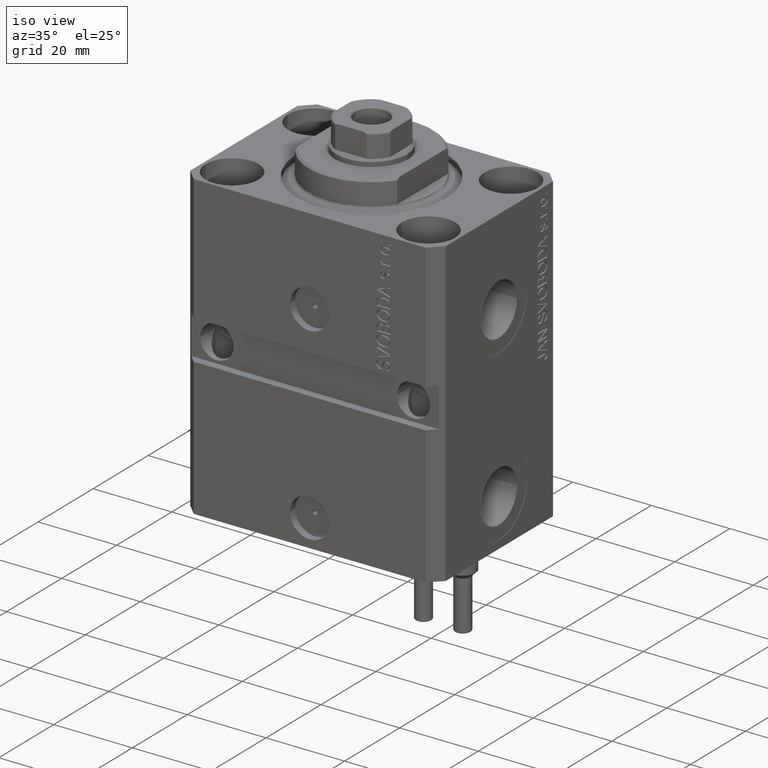
[diagram: clean part render]
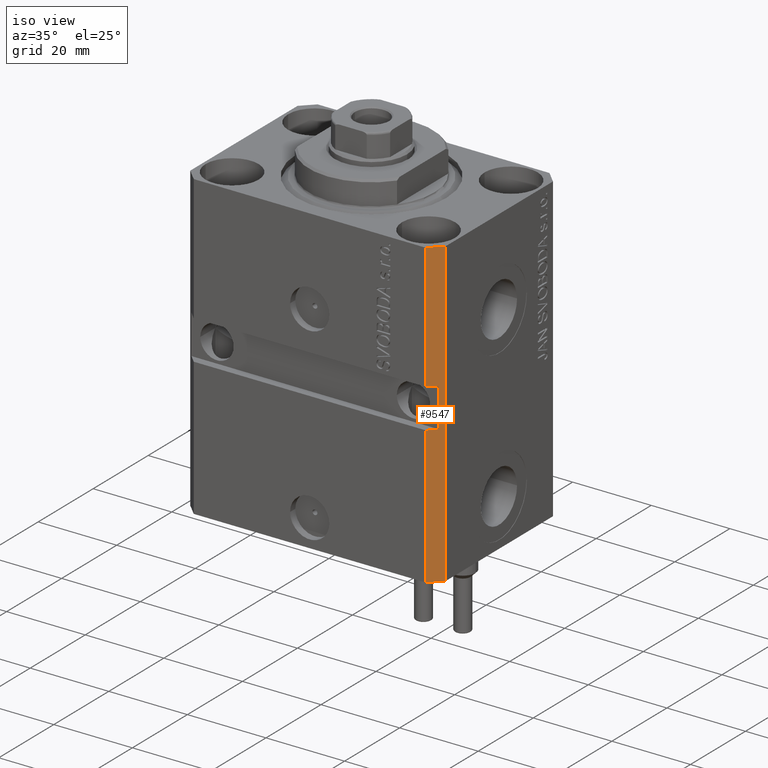
[diagram: same view with one face highlighted and labeled with its STEP entity id]
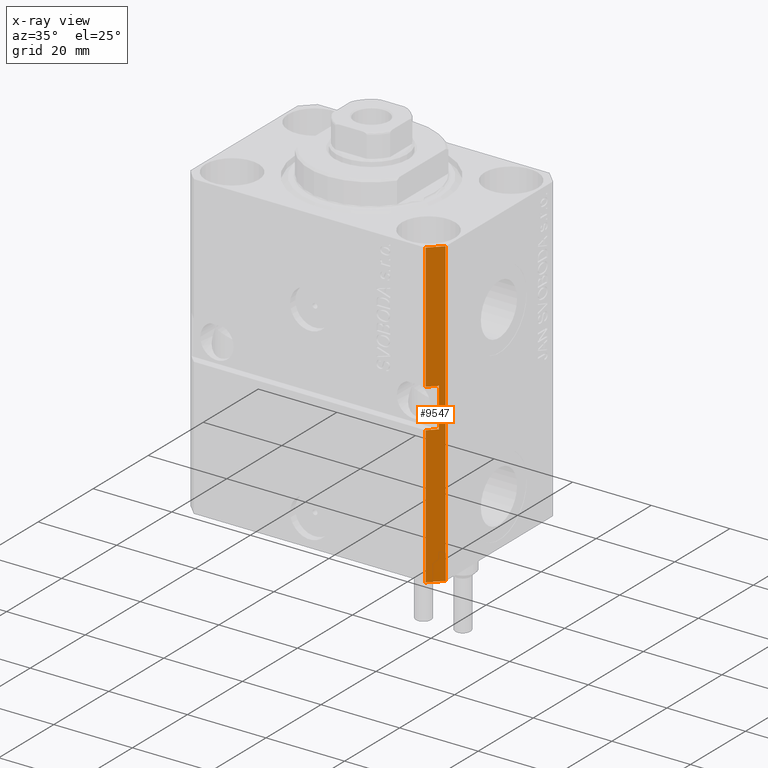
[diagram: x-ray of the same camera — body ghosted, the highlighted face saturated]
A machine part, iso view. The second image highlights one B-rep face of the part: STEP entity #9547.
The next image is the same camera in x-ray: the body ghosted, the highlighted face saturated — about 0% of this face is hidden behind the body in this view.
In plain terms, the highlighted planar face has unit normal (0.7071, -0.7071, 0).
Its self-contained STEP definition (entity closure, byte-faithful):
#1344 = CARTESIAN_POINT ( 'NONE',  ( 31.49999999999651124, -20.49999999999949551, -77.00000000000000000 ) ) ;
#1518 = VERTEX_POINT ( 'NONE', #18803 ) ;
#1938 = VERTEX_POINT ( 'NONE', #47677 ) ;
#2707 = VECTOR ( 'NONE', #20013, 1000.000000000000000 ) ;
#3763 = LINE ( 'NONE', #25850, #41062 ) ;
#4176 = VERTEX_POINT ( 'NONE', #46968 ) ;
#5190 = EDGE_CURVE ( 'NONE', #4176, #39904, #30028, .T. ) ;
#5207 = DIRECTION ( 'NONE',  ( 0.000000000000000000, 0.000000000000000000, 1.000000000000000000 ) ) ;
#5441 = ORIENTED_EDGE ( 'NONE', *, *, #36109, .T. ) ;
#5447 = CARTESIAN_POINT ( 'NONE',  ( 29.49999999999650413, -22.49999999999949196, -77.00000000000000000 ) ) ;
#6826 = EDGE_CURVE ( 'NONE', #7183, #22513, #9450, .T. ) ;
#7183 = VERTEX_POINT ( 'NONE', #13967 ) ;
#7200 = DIRECTION ( 'NONE',  ( 0.7071067811865483499, 0.7071067811865466846, 0.000000000000000000 ) ) ;
#7521 = AXIS2_PLACEMENT_3D ( 'NONE', #29481, #10576, #33153 ) ;
#7701 = CARTESIAN_POINT ( 'NONE',  ( 29.49999999999650058, -22.49999999999949551, -41.99999999999998579 ) ) ;
#7724 = VECTOR ( 'NONE', #5207, 1000.000000000000000 ) ;
#9450 = LINE ( 'NONE', #42594, #2707 ) ;
#9547 = ADVANCED_FACE ( 'NONE', ( #44196 ), #43473, .T. ) ;
#9661 = VECTOR ( 'NONE', #26817, 1000.000000000000000 ) ;
#9751 = VECTOR ( 'NONE', #29148, 1000.000000000000000 ) ;
#9826 = VERTEX_POINT ( 'NONE', #11734 ) ;
#10514 = VECTOR ( 'NONE', #22665, 1000.000000000000000 ) ;
#10542 = EDGE_CURVE ( 'NONE', #1518, #1938, #14747, .T. ) ;
#10576 = DIRECTION ( 'NONE',  ( 0.7071067811865466846, -0.7071067811865483499, 0.000000000000000000 ) ) ;
#11548 = ORIENTED_EDGE ( 'NONE', *, *, #5190, .F. ) ;
#11734 = CARTESIAN_POINT ( 'NONE',  ( 29.49999999999650413, -22.49999999999949196, -77.00000000000000000 ) ) ;
#12953 = ORIENTED_EDGE ( 'NONE', *, *, #14999, .F. ) ;
#13967 = CARTESIAN_POINT ( 'NONE',  ( 31.49999999999651124, -20.49999999999949196, -32.00000000000000711 ) ) ;
#14747 = LINE ( 'NONE', #37334, #25579 ) ;
#14999 = EDGE_CURVE ( 'NONE', #9826, #4176, #35611, .T. ) ;
#16459 = VERTEX_POINT ( 'NONE', #21715 ) ;
#18557 = CARTESIAN_POINT ( 'NONE',  ( 31.49999999999650413, -20.49999999999949196, -41.99999999999998579 ) ) ;
#18803 = CARTESIAN_POINT ( 'NONE',  ( 32.49999999999651124, -19.49999999999949196, -77.00000000000000000 ) ) ;
#18990 = CARTESIAN_POINT ( 'NONE',  ( 29.49999999999650413, -22.49999999999949196, -32.00000000000000711 ) ) ;
#20013 = DIRECTION ( 'NONE',  ( -0.7071067811865483499, -0.7071067811865466846, 7.548521435980509068E-17 ) ) ;
#21715 = CARTESIAN_POINT ( 'NONE',  ( 29.49999999999650413, -22.49999999999949196, 0.000000000000000000 ) ) ;
#22513 = VERTEX_POINT ( 'NONE', #18990 ) ;
#22665 = DIRECTION ( 'NONE',  ( 0.7071067811865483499, 0.7071067811865466846, 7.548521435980509068E-17 ) ) ;
#23133 = CARTESIAN_POINT ( 'NONE',  ( 29.49999999999650413, -22.49999999999949196, -77.00000000000000000 ) ) ;
#23353 = VECTOR ( 'NONE', #27356, 1000.000000000000000 ) ;
#25579 = VECTOR ( 'NONE', #29737, 1000.000000000000000 ) ;
#25850 = CARTESIAN_POINT ( 'NONE',  ( 29.49999999999650413, -22.49999999999949196, 0.000000000000000000 ) ) ;
#26817 = DIRECTION ( 'NONE',  ( 0.000000000000000000, 0.000000000000000000, 1.000000000000000000 ) ) ;
#27356 = DIRECTION ( 'NONE',  ( 0.000000000000000000, 0.000000000000000000, -1.000000000000000000 ) ) ;
#28081 = ORIENTED_EDGE ( 'NONE', *, *, #10542, .T. ) ;
#29148 = DIRECTION ( 'NONE',  ( 0.7071067811865483499, 0.7071067811865466846, 0.000000000000000000 ) ) ;
#29481 = CARTESIAN_POINT ( 'NONE',  ( 29.49999999999650413, -22.49999999999949196, -77.00000000000000000 ) ) ;
#29737 = DIRECTION ( 'NONE',  ( 0.000000000000000000, 0.000000000000000000, 1.000000000000000000 ) ) ;
#29824 = EDGE_CURVE ( 'NONE', #22513, #16459, #38596, .T. ) ;
#30028 = LINE ( 'NONE', #7701, #10514 ) ;
#30621 = EDGE_CURVE ( 'NONE', #16459, #1938, #3763, .T. ) ;
#30794 = LINE ( 'NONE', #1344, #23353 ) ;
#32707 = ORIENTED_EDGE ( 'NONE', *, *, #6826, .F. ) ;
#32829 = LINE ( 'NONE', #48024, #9751 ) ;
#33153 = DIRECTION ( 'NONE',  ( 0.7071067811865483499, 0.7071067811865466846, 0.000000000000000000 ) ) ;
#35611 = LINE ( 'NONE', #5447, #7724 ) ;
#36109 = EDGE_CURVE ( 'NONE', #9826, #1518, #32829, .T. ) ;
#36126 = ORIENTED_EDGE ( 'NONE', *, *, #30621, .F. ) ;
#37334 = CARTESIAN_POINT ( 'NONE',  ( 32.49999999999651124, -19.49999999999949196, -77.00000000000000000 ) ) ;
#38596 = LINE ( 'NONE', #23133, #9661 ) ;
#39904 = VERTEX_POINT ( 'NONE', #18557 ) ;
#41062 = VECTOR ( 'NONE', #7200, 1000.000000000000000 ) ;
#41287 = ORIENTED_EDGE ( 'NONE', *, *, #29824, .F. ) ;
#42594 = CARTESIAN_POINT ( 'NONE',  ( 29.49999999999650768, -22.49999999999948841, -32.00000000000000711 ) ) ;
#43473 = PLANE ( 'NONE',  #7521 ) ;
#43724 = EDGE_CURVE ( 'NONE', #7183, #39904, #30794, .T. ) ;
#44196 = FACE_OUTER_BOUND ( 'NONE', #45409, .T. ) ;
#44237 = ORIENTED_EDGE ( 'NONE', *, *, #43724, .T. ) ;
#45409 = EDGE_LOOP ( 'NONE', ( #11548, #12953, #5441, #28081, #36126, #41287, #32707, #44237 ) ) ;
#46968 = CARTESIAN_POINT ( 'NONE',  ( 29.49999999999650058, -22.49999999999949196, -41.99999999999998579 ) ) ;
#47677 = CARTESIAN_POINT ( 'NONE',  ( 32.49999999999651124, -19.49999999999949196, 0.000000000000000000 ) ) ;
#48024 = CARTESIAN_POINT ( 'NONE',  ( 29.49999999999650413, -22.49999999999949196, -77.00000000000000000 ) ) ;